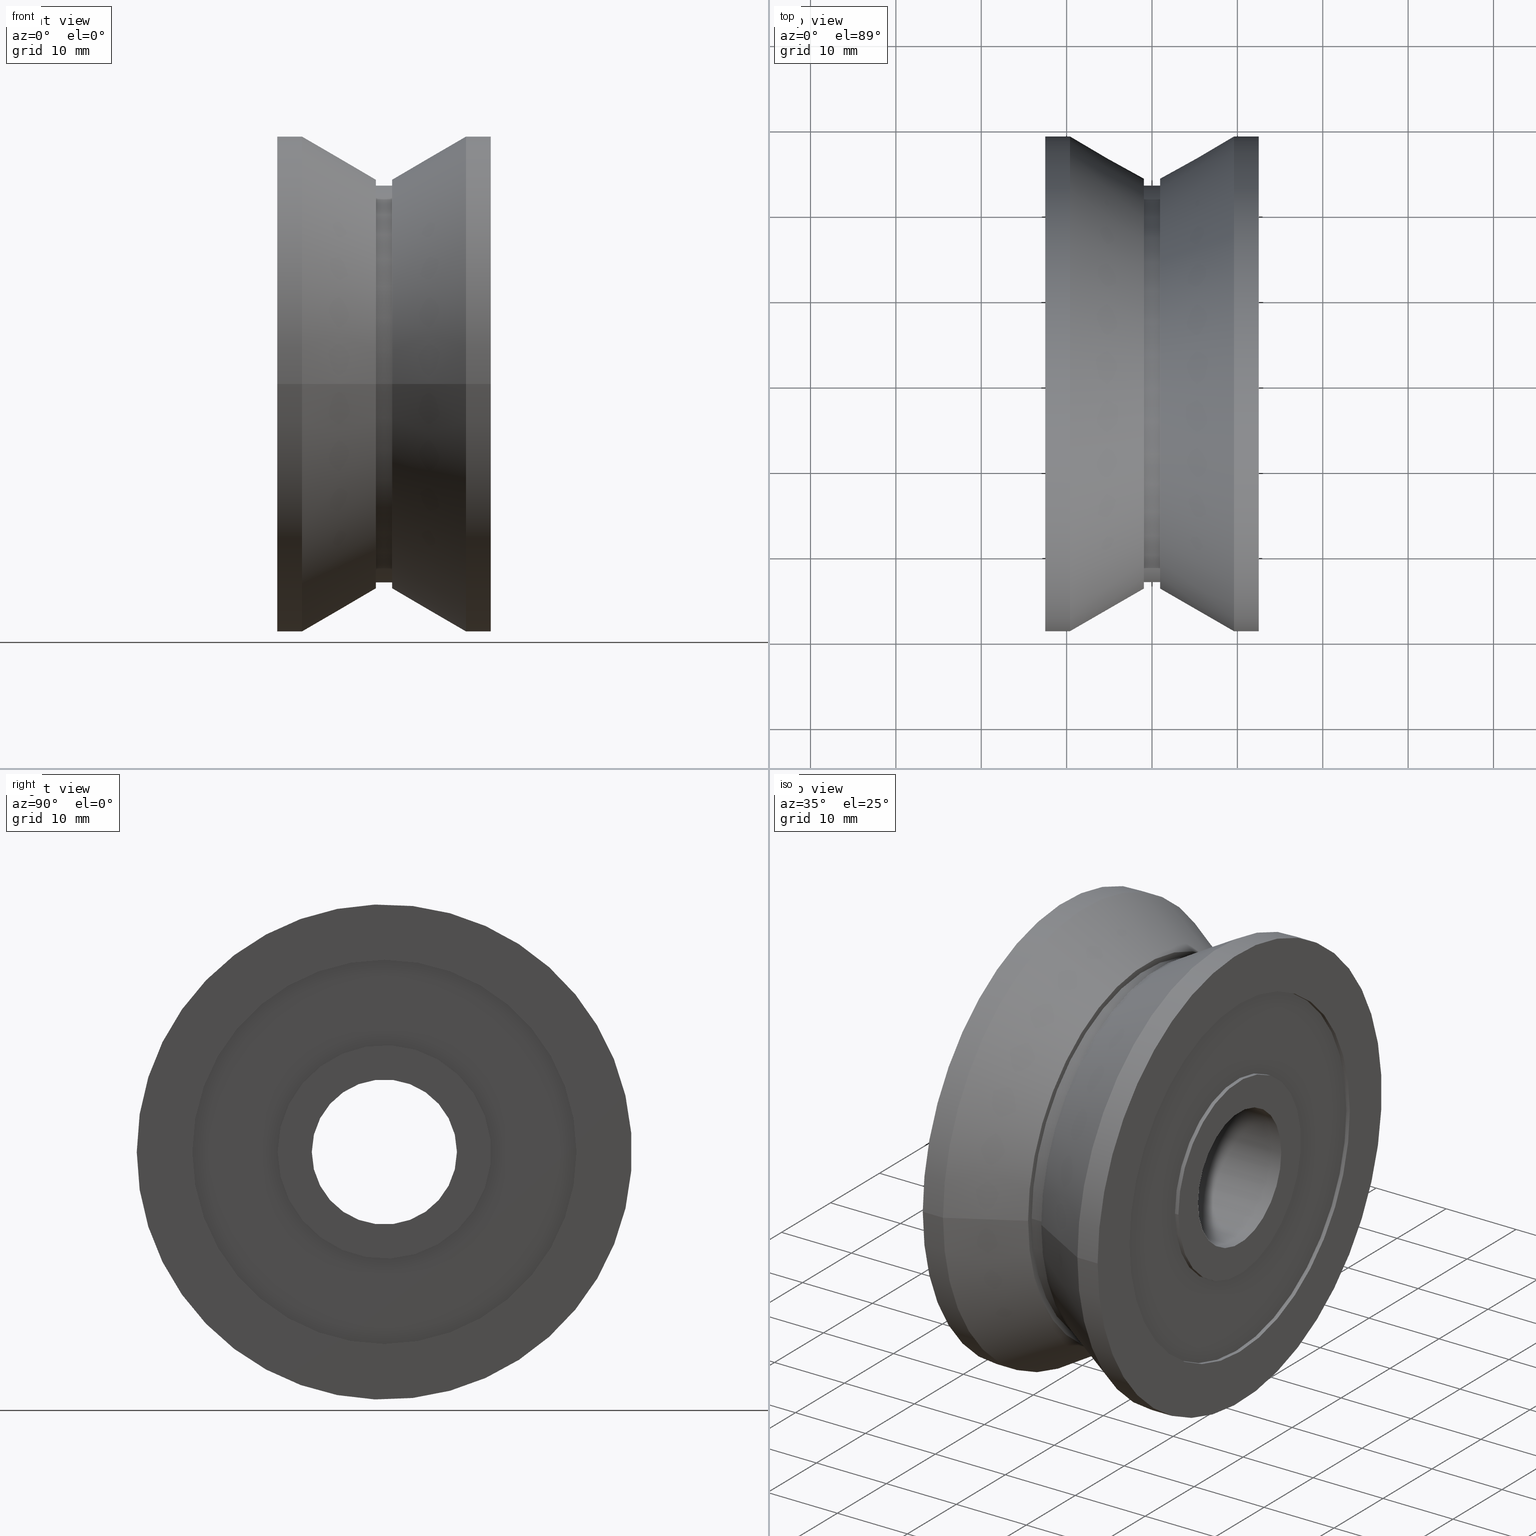
[diagram: canonical four-view strip — front | top / right | iso, engineering-drawing reading convention]
A machine part, canonical four-view strip (front | top / right | iso — engineering-drawing reading convention). The complete STEP part file that produces these views, byte-faithful:
ISO-10303-21;
HEADER;
/* Generated by software containing ST-Developer
 * from STEP Tools, Inc. (www.steptools.com) 
 */

FILE_DESCRIPTION(
/* description */ ('ROTELLA DI=17 DE=58 SP=25 DT=20'),
/* implementation_level */ '2;1');

FILE_NAME(
/* name */ 'C:\\Users\\tecnico7\\Desktop\\80RT00016R-A.stp',
/* time_stamp */ '2022-07-20T09:23:37+02:00',
/* author */ ('tecnico7'),
/* organization */ (''),
/* preprocessor_version */ 'ST-DEVELOPER v18.1',
/* originating_system */ 'Autodesk Inventor 2022',
/* authorisation */ '');

FILE_SCHEMA (('AUTOMOTIVE_DESIGN { 1 0 10303 214 3 1 1 }'));
ENDSEC;

DATA;
#10=MECHANICAL_DESIGN_GEOMETRIC_PRESENTATION_REPRESENTATION('',(#16,#17,
#18),#456);
#11=SHAPE_REPRESENTATION_RELATIONSHIP('SRR','None',#463,#12);
#12=ADVANCED_BREP_SHAPE_REPRESENTATION('',(#13),#455);
#13=MANIFOLD_SOLID_BREP('Solido1',#245);
#14=CONICAL_SURFACE('',#281,26.5007386859688,0.523598775598299);
#15=CONICAL_SURFACE('',#289,26.5007386859688,0.5235987755983);
#16=STYLED_ITEM('',(#473),#229);
#17=STYLED_ITEM('',(#473),#241);
#18=STYLED_ITEM('',(#472),#13);
#19=LINE('',#397,#29);
#20=LINE('',#403,#30);
#21=LINE('',#411,#31);
#22=LINE('',#415,#32);
#23=LINE('',#422,#33);
#24=LINE('',#429,#34);
#25=LINE('',#433,#35);
#26=LINE('',#439,#36);
#27=LINE('',#447,#37);
#28=LINE('',#452,#38);
#29=VECTOR('',#316,12.5);
#30=VECTOR('',#323,22.5);
#31=VECTOR('',#334,29.);
#32=VECTOR('',#339,26.5007386859688);
#33=VECTOR('',#348,23.25);
#34=VECTOR('',#357,26.5007386859688);
#35=VECTOR('',#362,29.);
#36=VECTOR('',#369,22.5);
#37=VECTOR('',#380,12.5);
#38=VECTOR('',#387,8.5);
#39=CYLINDRICAL_SURFACE('',#271,12.5);
#40=CYLINDRICAL_SURFACE('',#275,22.5);
#41=CYLINDRICAL_SURFACE('',#279,29.);
#42=CYLINDRICAL_SURFACE('',#285,23.25);
#43=CYLINDRICAL_SURFACE('',#291,29.);
#44=CYLINDRICAL_SURFACE('',#295,22.5);
#45=CYLINDRICAL_SURFACE('',#299,12.5);
#46=CYLINDRICAL_SURFACE('',#303,8.5);
#47=FACE_BOUND('',#74,.T.);
#48=FACE_BOUND('',#77,.T.);
#49=FACE_BOUND('',#80,.T.);
#50=FACE_BOUND('',#84,.T.);
#51=FACE_BOUND('',#87,.T.);
#52=FACE_BOUND('',#91,.T.);
#53=FACE_BOUND('',#94,.T.);
#54=FACE_BOUND('',#97,.T.);
#55=FACE_OUTER_BOUND('',#73,.T.);
#56=FACE_OUTER_BOUND('',#75,.T.);
#57=FACE_OUTER_BOUND('',#76,.T.);
#58=FACE_OUTER_BOUND('',#78,.T.);
#59=FACE_OUTER_BOUND('',#79,.T.);
#60=FACE_OUTER_BOUND('',#81,.T.);
#61=FACE_OUTER_BOUND('',#82,.T.);
#62=FACE_OUTER_BOUND('',#83,.T.);
#63=FACE_OUTER_BOUND('',#85,.T.);
#64=FACE_OUTER_BOUND('',#86,.T.);
#65=FACE_OUTER_BOUND('',#88,.T.);
#66=FACE_OUTER_BOUND('',#89,.T.);
#67=FACE_OUTER_BOUND('',#90,.T.);
#68=FACE_OUTER_BOUND('',#92,.T.);
#69=FACE_OUTER_BOUND('',#93,.T.);
#70=FACE_OUTER_BOUND('',#95,.T.);
#71=FACE_OUTER_BOUND('',#96,.T.);
#72=FACE_OUTER_BOUND('',#98,.T.);
#73=EDGE_LOOP('',(#163));
#74=EDGE_LOOP('',(#164));
#75=EDGE_LOOP('',(#165,#166,#167,#168));
#76=EDGE_LOOP('',(#169));
#77=EDGE_LOOP('',(#170));
#78=EDGE_LOOP('',(#171,#172,#173,#174));
#79=EDGE_LOOP('',(#175));
#80=EDGE_LOOP('',(#176));
#81=EDGE_LOOP('',(#177,#178,#179,#180));
#82=EDGE_LOOP('',(#181,#182,#183,#184));
#83=EDGE_LOOP('',(#185));
#84=EDGE_LOOP('',(#186));
#85=EDGE_LOOP('',(#187,#188,#189,#190));
#86=EDGE_LOOP('',(#191));
#87=EDGE_LOOP('',(#192));
#88=EDGE_LOOP('',(#193,#194,#195,#196));
#89=EDGE_LOOP('',(#197,#198,#199,#200));
#90=EDGE_LOOP('',(#201));
#91=EDGE_LOOP('',(#202));
#92=EDGE_LOOP('',(#203,#204,#205,#206));
#93=EDGE_LOOP('',(#207));
#94=EDGE_LOOP('',(#208));
#95=EDGE_LOOP('',(#209,#210,#211,#212));
#96=EDGE_LOOP('',(#213));
#97=EDGE_LOOP('',(#214));
#98=EDGE_LOOP('',(#215,#216,#217,#218));
#99=CIRCLE('',#269,12.5);
#100=CIRCLE('',#270,8.5);
#101=CIRCLE('',#272,12.5);
#102=CIRCLE('',#274,22.5);
#103=CIRCLE('',#276,22.5);
#104=CIRCLE('',#278,29.);
#105=CIRCLE('',#280,29.);
#106=CIRCLE('',#282,24.0014773719376);
#107=CIRCLE('',#284,23.25);
#108=CIRCLE('',#286,23.25);
#109=CIRCLE('',#288,24.0014773719376);
#110=CIRCLE('',#290,29.);
#111=CIRCLE('',#292,29.);
#112=CIRCLE('',#294,22.5);
#113=CIRCLE('',#296,22.5);
#114=CIRCLE('',#298,12.5);
#115=CIRCLE('',#300,12.5);
#116=CIRCLE('',#302,8.5);
#117=VERTEX_POINT('',#390);
#118=VERTEX_POINT('',#392);
#119=VERTEX_POINT('',#395);
#120=VERTEX_POINT('',#399);
#121=VERTEX_POINT('',#402);
#122=VERTEX_POINT('',#406);
#123=VERTEX_POINT('',#409);
#124=VERTEX_POINT('',#413);
#125=VERTEX_POINT('',#417);
#126=VERTEX_POINT('',#420);
#127=VERTEX_POINT('',#424);
#128=VERTEX_POINT('',#427);
#129=VERTEX_POINT('',#431);
#130=VERTEX_POINT('',#435);
#131=VERTEX_POINT('',#438);
#132=VERTEX_POINT('',#442);
#133=VERTEX_POINT('',#445);
#134=VERTEX_POINT('',#449);
#135=EDGE_CURVE('',#117,#117,#99,.T.);
#136=EDGE_CURVE('',#118,#118,#100,.T.);
#137=EDGE_CURVE('',#119,#119,#101,.T.);
#138=EDGE_CURVE('',#119,#117,#19,.T.);
#139=EDGE_CURVE('',#120,#120,#102,.T.);
#140=EDGE_CURVE('',#120,#121,#20,.T.);
#141=EDGE_CURVE('',#121,#121,#103,.T.);
#142=EDGE_CURVE('',#122,#122,#104,.T.);
#143=EDGE_CURVE('',#123,#123,#105,.T.);
#144=EDGE_CURVE('',#123,#122,#21,.T.);
#145=EDGE_CURVE('',#124,#124,#106,.T.);
#146=EDGE_CURVE('',#124,#123,#22,.T.);
#147=EDGE_CURVE('',#125,#125,#107,.T.);
#148=EDGE_CURVE('',#126,#126,#108,.T.);
#149=EDGE_CURVE('',#126,#125,#23,.T.);
#150=EDGE_CURVE('',#127,#127,#109,.T.);
#151=EDGE_CURVE('',#128,#128,#110,.T.);
#152=EDGE_CURVE('',#128,#127,#24,.T.);
#153=EDGE_CURVE('',#129,#129,#111,.T.);
#154=EDGE_CURVE('',#129,#128,#25,.T.);
#155=EDGE_CURVE('',#130,#130,#112,.T.);
#156=EDGE_CURVE('',#130,#131,#26,.T.);
#157=EDGE_CURVE('',#131,#131,#113,.T.);
#158=EDGE_CURVE('',#132,#132,#114,.T.);
#159=EDGE_CURVE('',#133,#133,#115,.T.);
#160=EDGE_CURVE('',#133,#132,#27,.T.);
#161=EDGE_CURVE('',#134,#134,#116,.T.);
#162=EDGE_CURVE('',#134,#118,#28,.T.);
#163=ORIENTED_EDGE('',*,*,#135,.F.);
#164=ORIENTED_EDGE('',*,*,#136,.T.);
#165=ORIENTED_EDGE('',*,*,#137,.F.);
#166=ORIENTED_EDGE('',*,*,#138,.T.);
#167=ORIENTED_EDGE('',*,*,#135,.T.);
#168=ORIENTED_EDGE('',*,*,#138,.F.);
#169=ORIENTED_EDGE('',*,*,#139,.F.);
#170=ORIENTED_EDGE('',*,*,#137,.T.);
#171=ORIENTED_EDGE('',*,*,#139,.T.);
#172=ORIENTED_EDGE('',*,*,#140,.T.);
#173=ORIENTED_EDGE('',*,*,#141,.F.);
#174=ORIENTED_EDGE('',*,*,#140,.F.);
#175=ORIENTED_EDGE('',*,*,#142,.F.);
#176=ORIENTED_EDGE('',*,*,#141,.T.);
#177=ORIENTED_EDGE('',*,*,#143,.F.);
#178=ORIENTED_EDGE('',*,*,#144,.T.);
#179=ORIENTED_EDGE('',*,*,#142,.T.);
#180=ORIENTED_EDGE('',*,*,#144,.F.);
#181=ORIENTED_EDGE('',*,*,#145,.F.);
#182=ORIENTED_EDGE('',*,*,#146,.T.);
#183=ORIENTED_EDGE('',*,*,#143,.T.);
#184=ORIENTED_EDGE('',*,*,#146,.F.);
#185=ORIENTED_EDGE('',*,*,#145,.T.);
#186=ORIENTED_EDGE('',*,*,#147,.F.);
#187=ORIENTED_EDGE('',*,*,#148,.F.);
#188=ORIENTED_EDGE('',*,*,#149,.T.);
#189=ORIENTED_EDGE('',*,*,#147,.T.);
#190=ORIENTED_EDGE('',*,*,#149,.F.);
#191=ORIENTED_EDGE('',*,*,#150,.F.);
#192=ORIENTED_EDGE('',*,*,#148,.T.);
#193=ORIENTED_EDGE('',*,*,#151,.F.);
#194=ORIENTED_EDGE('',*,*,#152,.T.);
#195=ORIENTED_EDGE('',*,*,#150,.T.);
#196=ORIENTED_EDGE('',*,*,#152,.F.);
#197=ORIENTED_EDGE('',*,*,#153,.F.);
#198=ORIENTED_EDGE('',*,*,#154,.T.);
#199=ORIENTED_EDGE('',*,*,#151,.T.);
#200=ORIENTED_EDGE('',*,*,#154,.F.);
#201=ORIENTED_EDGE('',*,*,#153,.T.);
#202=ORIENTED_EDGE('',*,*,#155,.F.);
#203=ORIENTED_EDGE('',*,*,#155,.T.);
#204=ORIENTED_EDGE('',*,*,#156,.T.);
#205=ORIENTED_EDGE('',*,*,#157,.F.);
#206=ORIENTED_EDGE('',*,*,#156,.F.);
#207=ORIENTED_EDGE('',*,*,#157,.T.);
#208=ORIENTED_EDGE('',*,*,#158,.F.);
#209=ORIENTED_EDGE('',*,*,#159,.F.);
#210=ORIENTED_EDGE('',*,*,#160,.T.);
#211=ORIENTED_EDGE('',*,*,#158,.T.);
#212=ORIENTED_EDGE('',*,*,#160,.F.);
#213=ORIENTED_EDGE('',*,*,#159,.T.);
#214=ORIENTED_EDGE('',*,*,#161,.F.);
#215=ORIENTED_EDGE('',*,*,#161,.T.);
#216=ORIENTED_EDGE('',*,*,#162,.T.);
#217=ORIENTED_EDGE('',*,*,#136,.F.);
#218=ORIENTED_EDGE('',*,*,#162,.F.);
#219=PLANE('',#268);
#220=PLANE('',#273);
#221=PLANE('',#277);
#222=PLANE('',#283);
#223=PLANE('',#287);
#224=PLANE('',#293);
#225=PLANE('',#297);
#226=PLANE('',#301);
#227=ADVANCED_FACE('',(#55,#47),#219,.T.);
#228=ADVANCED_FACE('',(#56),#39,.T.);
#229=ADVANCED_FACE('',(#57,#48),#220,.T.);
#230=ADVANCED_FACE('',(#58),#40,.F.);
#231=ADVANCED_FACE('',(#59,#49),#221,.T.);
#232=ADVANCED_FACE('',(#60),#41,.T.);
#233=ADVANCED_FACE('',(#61),#14,.T.);
#234=ADVANCED_FACE('',(#62,#50),#222,.T.);
#235=ADVANCED_FACE('',(#63),#42,.T.);
#236=ADVANCED_FACE('',(#64,#51),#223,.T.);
#237=ADVANCED_FACE('',(#65),#15,.T.);
#238=ADVANCED_FACE('',(#66),#43,.T.);
#239=ADVANCED_FACE('',(#67,#52),#224,.T.);
#240=ADVANCED_FACE('',(#68),#44,.F.);
#241=ADVANCED_FACE('',(#69,#53),#225,.T.);
#242=ADVANCED_FACE('',(#70),#45,.T.);
#243=ADVANCED_FACE('',(#71,#54),#226,.T.);
#244=ADVANCED_FACE('',(#72),#46,.F.);
#245=CLOSED_SHELL('',(#227,#228,#229,#230,#231,#232,#233,#234,#235,#236,
#237,#238,#239,#240,#241,#242,#243,#244));
#246=DERIVED_UNIT_ELEMENT(#249,1.);
#247=DERIVED_UNIT_ELEMENT(#458,-3.);
#248=DIMENSIONAL_EXPONENTS(1.,0.,0.,0.,0.,0.,0.);
#249=(
CONVERSION_BASED_UNIT('gram',#251)
MASS_UNIT()
NAMED_UNIT(#248)
);
#250=(
MASS_UNIT()
NAMED_UNIT(*)
SI_UNIT(.KILO.,.GRAM.)
);
#251=MASS_MEASURE_WITH_UNIT(MASS_MEASURE(0.001),#250);
#252=DERIVED_UNIT((#246,#247));
#253=MEASURE_REPRESENTATION_ITEM('density measure',
POSITIVE_RATIO_MEASURE(7.87),#252);
#254=PROPERTY_DEFINITION_REPRESENTATION(#259,#256);
#255=PROPERTY_DEFINITION_REPRESENTATION(#260,#257);
#256=REPRESENTATION('material name',(#258),#455);
#257=REPRESENTATION('density',(#253),#455);
#258=DESCRIPTIVE_REPRESENTATION_ITEM('Acciaio al carbonio',
'Acciaio al carbonio');
#259=PROPERTY_DEFINITION('material property','material name',#465);
#260=PROPERTY_DEFINITION('material property','density of part',#465);
#261=DATE_TIME_ROLE('creation_date');
#262=APPLIED_DATE_AND_TIME_ASSIGNMENT(#263,#261,(#465));
#263=DATE_AND_TIME(#264,#265);
#264=CALENDAR_DATE(2012,28,6);
#265=LOCAL_TIME(0,0,0.,#266);
#266=COORDINATED_UNIVERSAL_TIME_OFFSET(0,0,.BEHIND.);
#267=AXIS2_PLACEMENT_3D('placement',#388,#304,#305);
#268=AXIS2_PLACEMENT_3D('',#389,#306,#307);
#269=AXIS2_PLACEMENT_3D('',#391,#308,#309);
#270=AXIS2_PLACEMENT_3D('',#393,#310,#311);
#271=AXIS2_PLACEMENT_3D('',#394,#312,#313);
#272=AXIS2_PLACEMENT_3D('',#396,#314,#315);
#273=AXIS2_PLACEMENT_3D('',#398,#317,#318);
#274=AXIS2_PLACEMENT_3D('',#400,#319,#320);
#275=AXIS2_PLACEMENT_3D('',#401,#321,#322);
#276=AXIS2_PLACEMENT_3D('',#404,#324,#325);
#277=AXIS2_PLACEMENT_3D('',#405,#326,#327);
#278=AXIS2_PLACEMENT_3D('',#407,#328,#329);
#279=AXIS2_PLACEMENT_3D('',#408,#330,#331);
#280=AXIS2_PLACEMENT_3D('',#410,#332,#333);
#281=AXIS2_PLACEMENT_3D('',#412,#335,#336);
#282=AXIS2_PLACEMENT_3D('',#414,#337,#338);
#283=AXIS2_PLACEMENT_3D('',#416,#340,#341);
#284=AXIS2_PLACEMENT_3D('',#418,#342,#343);
#285=AXIS2_PLACEMENT_3D('',#419,#344,#345);
#286=AXIS2_PLACEMENT_3D('',#421,#346,#347);
#287=AXIS2_PLACEMENT_3D('',#423,#349,#350);
#288=AXIS2_PLACEMENT_3D('',#425,#351,#352);
#289=AXIS2_PLACEMENT_3D('',#426,#353,#354);
#290=AXIS2_PLACEMENT_3D('',#428,#355,#356);
#291=AXIS2_PLACEMENT_3D('',#430,#358,#359);
#292=AXIS2_PLACEMENT_3D('',#432,#360,#361);
#293=AXIS2_PLACEMENT_3D('',#434,#363,#364);
#294=AXIS2_PLACEMENT_3D('',#436,#365,#366);
#295=AXIS2_PLACEMENT_3D('',#437,#367,#368);
#296=AXIS2_PLACEMENT_3D('',#440,#370,#371);
#297=AXIS2_PLACEMENT_3D('',#441,#372,#373);
#298=AXIS2_PLACEMENT_3D('',#443,#374,#375);
#299=AXIS2_PLACEMENT_3D('',#444,#376,#377);
#300=AXIS2_PLACEMENT_3D('',#446,#378,#379);
#301=AXIS2_PLACEMENT_3D('',#448,#381,#382);
#302=AXIS2_PLACEMENT_3D('',#450,#383,#384);
#303=AXIS2_PLACEMENT_3D('',#451,#385,#386);
#304=DIRECTION('axis',(0.,0.,1.));
#305=DIRECTION('refdir',(1.,0.,0.));
#306=DIRECTION('center_axis',(-1.,0.,0.));
#307=DIRECTION('ref_axis',(0.,0.,1.));
#308=DIRECTION('center_axis',(1.,0.,0.));
#309=DIRECTION('ref_axis',(0.,1.,0.));
#310=DIRECTION('center_axis',(1.,0.,0.));
#311=DIRECTION('ref_axis',(0.,1.,0.));
#312=DIRECTION('center_axis',(1.,0.,0.));
#313=DIRECTION('ref_axis',(0.,1.,0.));
#314=DIRECTION('center_axis',(1.,0.,0.));
#315=DIRECTION('ref_axis',(0.,1.,0.));
#316=DIRECTION('',(-1.,0.,0.));
#317=DIRECTION('center_axis',(-1.,0.,0.));
#318=DIRECTION('ref_axis',(0.,0.,1.));
#319=DIRECTION('center_axis',(1.,0.,0.));
#320=DIRECTION('ref_axis',(0.,1.,0.));
#321=DIRECTION('center_axis',(1.,0.,0.));
#322=DIRECTION('ref_axis',(0.,1.,0.));
#323=DIRECTION('',(-1.,0.,0.));
#324=DIRECTION('center_axis',(1.,0.,0.));
#325=DIRECTION('ref_axis',(0.,1.,0.));
#326=DIRECTION('center_axis',(-1.,0.,0.));
#327=DIRECTION('ref_axis',(0.,0.,1.));
#328=DIRECTION('center_axis',(1.,0.,0.));
#329=DIRECTION('ref_axis',(0.,1.,0.));
#330=DIRECTION('center_axis',(1.,0.,0.));
#331=DIRECTION('ref_axis',(0.,1.,0.));
#332=DIRECTION('center_axis',(1.,0.,0.));
#333=DIRECTION('ref_axis',(0.,1.,0.));
#334=DIRECTION('',(-1.,0.,0.));
#335=DIRECTION('center_axis',(-1.,0.,0.));
#336=DIRECTION('ref_axis',(0.,1.,0.));
#337=DIRECTION('center_axis',(1.,0.,0.));
#338=DIRECTION('ref_axis',(0.,1.,0.));
#339=DIRECTION('',(-0.866025403784439,-0.5,-6.12323399573676E-17));
#340=DIRECTION('center_axis',(1.,0.,0.));
#341=DIRECTION('ref_axis',(0.,0.,-1.));
#342=DIRECTION('center_axis',(1.,0.,0.));
#343=DIRECTION('ref_axis',(0.,1.,0.));
#344=DIRECTION('center_axis',(1.,0.,0.));
#345=DIRECTION('ref_axis',(0.,1.,0.));
#346=DIRECTION('center_axis',(1.,0.,0.));
#347=DIRECTION('ref_axis',(0.,1.,0.));
#348=DIRECTION('',(-1.,0.,0.));
#349=DIRECTION('center_axis',(-1.,0.,0.));
#350=DIRECTION('ref_axis',(0.,0.,1.));
#351=DIRECTION('center_axis',(1.,0.,0.));
#352=DIRECTION('ref_axis',(0.,1.,0.));
#353=DIRECTION('center_axis',(1.,0.,0.));
#354=DIRECTION('ref_axis',(0.,1.,0.));
#355=DIRECTION('center_axis',(1.,0.,0.));
#356=DIRECTION('ref_axis',(0.,1.,0.));
#357=DIRECTION('',(-0.866025403784438,0.500000000000001,6.12323399573677E-17));
#358=DIRECTION('center_axis',(1.,0.,0.));
#359=DIRECTION('ref_axis',(0.,1.,0.));
#360=DIRECTION('center_axis',(1.,0.,0.));
#361=DIRECTION('ref_axis',(0.,1.,0.));
#362=DIRECTION('',(-1.,0.,0.));
#363=DIRECTION('center_axis',(1.,0.,0.));
#364=DIRECTION('ref_axis',(0.,0.,-1.));
#365=DIRECTION('center_axis',(1.,0.,0.));
#366=DIRECTION('ref_axis',(0.,1.,0.));
#367=DIRECTION('center_axis',(1.,0.,0.));
#368=DIRECTION('ref_axis',(0.,1.,0.));
#369=DIRECTION('',(-1.,0.,0.));
#370=DIRECTION('center_axis',(1.,0.,0.));
#371=DIRECTION('ref_axis',(0.,1.,0.));
#372=DIRECTION('center_axis',(1.,0.,0.));
#373=DIRECTION('ref_axis',(0.,0.,-1.));
#374=DIRECTION('center_axis',(1.,0.,0.));
#375=DIRECTION('ref_axis',(0.,1.,0.));
#376=DIRECTION('center_axis',(1.,0.,0.));
#377=DIRECTION('ref_axis',(0.,1.,0.));
#378=DIRECTION('center_axis',(1.,0.,0.));
#379=DIRECTION('ref_axis',(0.,1.,0.));
#380=DIRECTION('',(-1.,0.,0.));
#381=DIRECTION('center_axis',(1.,0.,0.));
#382=DIRECTION('ref_axis',(0.,0.,-1.));
#383=DIRECTION('center_axis',(1.,0.,0.));
#384=DIRECTION('ref_axis',(0.,1.,0.));
#385=DIRECTION('center_axis',(1.,0.,0.));
#386=DIRECTION('ref_axis',(0.,1.,0.));
#387=DIRECTION('',(-1.,0.,0.));
#388=CARTESIAN_POINT('',(0.,0.,0.));
#389=CARTESIAN_POINT('Origin',(-12.5,10.5,0.));
#390=CARTESIAN_POINT('',(-12.5,-12.5,-1.53080849893419E-15));
#391=CARTESIAN_POINT('Origin',(-12.5,0.,0.));
#392=CARTESIAN_POINT('',(-12.5,-8.5,-1.04094977927525E-15));
#393=CARTESIAN_POINT('Origin',(-12.5,0.,0.));
#394=CARTESIAN_POINT('Origin',(-12.25,0.,0.));
#395=CARTESIAN_POINT('',(-12.,-12.5,-1.53080849893419E-15));
#396=CARTESIAN_POINT('Origin',(-12.,0.,0.));
#397=CARTESIAN_POINT('',(-12.25,-12.5,-1.53080849893419E-15));
#398=CARTESIAN_POINT('Origin',(-12.,17.5,0.));
#399=CARTESIAN_POINT('',(-12.,-22.5,-2.75545529808154E-15));
#400=CARTESIAN_POINT('Origin',(-12.,0.,0.));
#401=CARTESIAN_POINT('Origin',(-12.25,0.,0.));
#402=CARTESIAN_POINT('',(-12.5,-22.5,-2.75545529808154E-15));
#403=CARTESIAN_POINT('',(-12.25,-22.5,-2.75545529808154E-15));
#404=CARTESIAN_POINT('Origin',(-12.5,0.,0.));
#405=CARTESIAN_POINT('Origin',(-12.5,25.75,0.));
#406=CARTESIAN_POINT('',(-12.5,-29.,-3.55147571752732E-15));
#407=CARTESIAN_POINT('Origin',(-12.5,0.,0.));
#408=CARTESIAN_POINT('Origin',(-11.0538475772934,0.,0.));
#409=CARTESIAN_POINT('',(-9.60769515458676,-29.,-3.55147571752732E-15));
#410=CARTESIAN_POINT('Origin',(-9.60769515458676,0.,0.));
#411=CARTESIAN_POINT('',(-11.0538475772934,-29.,-3.55147571752732E-15));
#412=CARTESIAN_POINT('Origin',(-5.27884757729338,0.,0.));
#413=CARTESIAN_POINT('',(-0.95,-24.0014773719376,-2.9393332438351E-15));
#414=CARTESIAN_POINT('Origin',(-0.95,0.,0.));
#415=CARTESIAN_POINT('',(-5.27884757729338,-26.5007386859688,-3.24540448068121E-15));
#416=CARTESIAN_POINT('Origin',(-0.95,23.6257386859688,0.));
#417=CARTESIAN_POINT('',(-0.950000000000002,-23.25,-2.8473038080176E-15));
#418=CARTESIAN_POINT('Origin',(-0.950000000000002,0.,0.));
#419=CARTESIAN_POINT('Origin',(0.,0.,0.));
#420=CARTESIAN_POINT('',(0.950000000000002,-23.25,-2.8473038080176E-15));
#421=CARTESIAN_POINT('Origin',(0.950000000000002,0.,0.));
#422=CARTESIAN_POINT('',(0.,-23.25,-2.8473038080176E-15));
#423=CARTESIAN_POINT('Origin',(0.95,23.6257386859688,0.));
#424=CARTESIAN_POINT('',(0.949999999999999,-24.0014773719376,-2.9393332438351E-15));
#425=CARTESIAN_POINT('Origin',(0.95,0.,0.));
#426=CARTESIAN_POINT('Origin',(5.27884757729337,0.,0.));
#427=CARTESIAN_POINT('',(9.60769515458674,-29.,-3.55147571752732E-15));
#428=CARTESIAN_POINT('Origin',(9.60769515458674,0.,0.));
#429=CARTESIAN_POINT('',(5.27884757729337,-26.5007386859688,-3.24540448068121E-15));
#430=CARTESIAN_POINT('Origin',(11.0538475772934,0.,0.));
#431=CARTESIAN_POINT('',(12.5,-29.,-3.55147571752732E-15));
#432=CARTESIAN_POINT('Origin',(12.5,0.,0.));
#433=CARTESIAN_POINT('',(11.0538475772934,-29.,-3.55147571752732E-15));
#434=CARTESIAN_POINT('Origin',(12.5,25.75,0.));
#435=CARTESIAN_POINT('',(12.5,-22.5,-2.75545529808154E-15));
#436=CARTESIAN_POINT('Origin',(12.5,0.,0.));
#437=CARTESIAN_POINT('Origin',(12.25,0.,0.));
#438=CARTESIAN_POINT('',(12.,-22.5,-2.75545529808154E-15));
#439=CARTESIAN_POINT('',(12.25,-22.5,-2.75545529808154E-15));
#440=CARTESIAN_POINT('Origin',(12.,0.,0.));
#441=CARTESIAN_POINT('Origin',(12.,17.5,0.));
#442=CARTESIAN_POINT('',(12.,-12.5,-1.53080849893419E-15));
#443=CARTESIAN_POINT('Origin',(12.,0.,0.));
#444=CARTESIAN_POINT('Origin',(12.25,0.,0.));
#445=CARTESIAN_POINT('',(12.5,-12.5,-1.53080849893419E-15));
#446=CARTESIAN_POINT('Origin',(12.5,0.,0.));
#447=CARTESIAN_POINT('',(12.25,-12.5,-1.53080849893419E-15));
#448=CARTESIAN_POINT('Origin',(12.5,10.5,0.));
#449=CARTESIAN_POINT('',(12.5,-8.5,-1.04094977927525E-15));
#450=CARTESIAN_POINT('Origin',(12.5,0.,0.));
#451=CARTESIAN_POINT('Origin',(0.,0.,0.));
#452=CARTESIAN_POINT('',(0.,-8.5,-1.04094977927525E-15));
#453=UNCERTAINTY_MEASURE_WITH_UNIT(LENGTH_MEASURE(0.01),#457,
'DISTANCE_ACCURACY_VALUE',
'Maximum model space distance between geometric entities at asserted c
onnectivities');
#454=UNCERTAINTY_MEASURE_WITH_UNIT(LENGTH_MEASURE(0.01),#457,
'DISTANCE_ACCURACY_VALUE',
'Maximum model space distance between geometric entities at asserted c
onnectivities');
#455=(
GEOMETRIC_REPRESENTATION_CONTEXT(3)
GLOBAL_UNCERTAINTY_ASSIGNED_CONTEXT((#453))
GLOBAL_UNIT_ASSIGNED_CONTEXT((#457,#459,#460))
REPRESENTATION_CONTEXT('','3D')
);
#456=(
GEOMETRIC_REPRESENTATION_CONTEXT(3)
GLOBAL_UNCERTAINTY_ASSIGNED_CONTEXT((#454))
GLOBAL_UNIT_ASSIGNED_CONTEXT((#457,#459,#460))
REPRESENTATION_CONTEXT('','3D')
);
#457=(
LENGTH_UNIT()
NAMED_UNIT(*)
SI_UNIT(.MILLI.,.METRE.)
);
#458=(
LENGTH_UNIT()
NAMED_UNIT(*)
SI_UNIT(.CENTI.,.METRE.)
);
#459=(
NAMED_UNIT(*)
PLANE_ANGLE_UNIT()
SI_UNIT($,.RADIAN.)
);
#460=(
NAMED_UNIT(*)
SI_UNIT($,.STERADIAN.)
SOLID_ANGLE_UNIT()
);
#461=SHAPE_DEFINITION_REPRESENTATION(#462,#463);
#462=PRODUCT_DEFINITION_SHAPE('',$,#465);
#463=SHAPE_REPRESENTATION('',(#267),#455);
#464=PRODUCT_DEFINITION_CONTEXT('part definition',#469,'design');
#465=PRODUCT_DEFINITION('80RT00016R-A','80RT00016R-A',#466,#464);
#466=PRODUCT_DEFINITION_FORMATION('A',$,#471);
#467=PRODUCT_RELATED_PRODUCT_CATEGORY('80RT00016R-A','80RT00016R-A',(#471));
#468=APPLICATION_PROTOCOL_DEFINITION('international standard',
'automotive_design',2009,#469);
#469=APPLICATION_CONTEXT(
'Core Data for Automotive Mechanical Design Process');
#470=PRODUCT_CONTEXT('part definition',#469,'mechanical');
#471=PRODUCT('80RT00016R-A','80RT00016R-A',
'ROTELLA DI=17 DE=58 SP=25 DT=20',(#470));
#472=PRESENTATION_STYLE_ASSIGNMENT((#474));
#473=PRESENTATION_STYLE_ASSIGNMENT((#475));
#474=SURFACE_STYLE_USAGE(.BOTH.,#480);
#475=SURFACE_STYLE_USAGE(.BOTH.,#481);
#476=SURFACE_STYLE_RENDERING_WITH_PROPERTIES($,#488,(#478));
#477=SURFACE_STYLE_RENDERING_WITH_PROPERTIES($,#489,(#479));
#478=SURFACE_STYLE_TRANSPARENT(0.);
#479=SURFACE_STYLE_TRANSPARENT(0.);
#480=SURFACE_SIDE_STYLE('',(#482,#476));
#481=SURFACE_SIDE_STYLE('',(#483,#477));
#482=SURFACE_STYLE_FILL_AREA(#484);
#483=SURFACE_STYLE_FILL_AREA(#485);
#484=FILL_AREA_STYLE('',(#486));
#485=FILL_AREA_STYLE('',(#487));
#486=FILL_AREA_STYLE_COLOUR('',#488);
#487=FILL_AREA_STYLE_COLOUR('',#489);
#488=COLOUR_RGB('',0.745098039215686,0.737254901960784,0.729411764705882);
#489=COLOUR_RGB('',0.0196078431372549,0.0196078431372549,0.0196078431372549);
ENDSEC;
END-ISO-10303-21;
